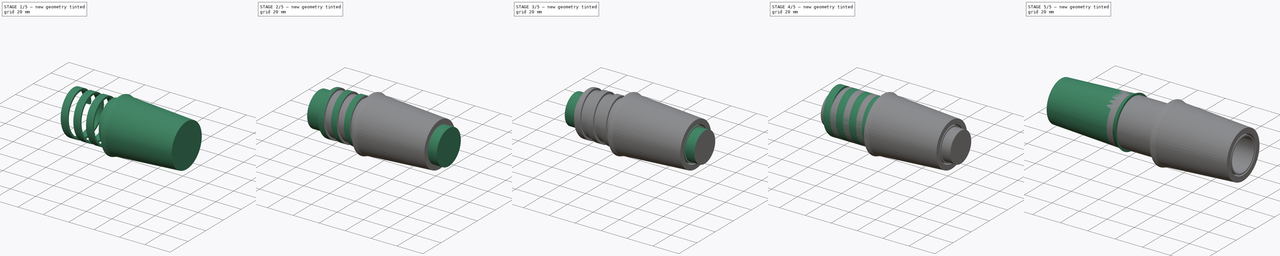
[diagram: build sequence overview — one tinted view per stage of 5, left to right]
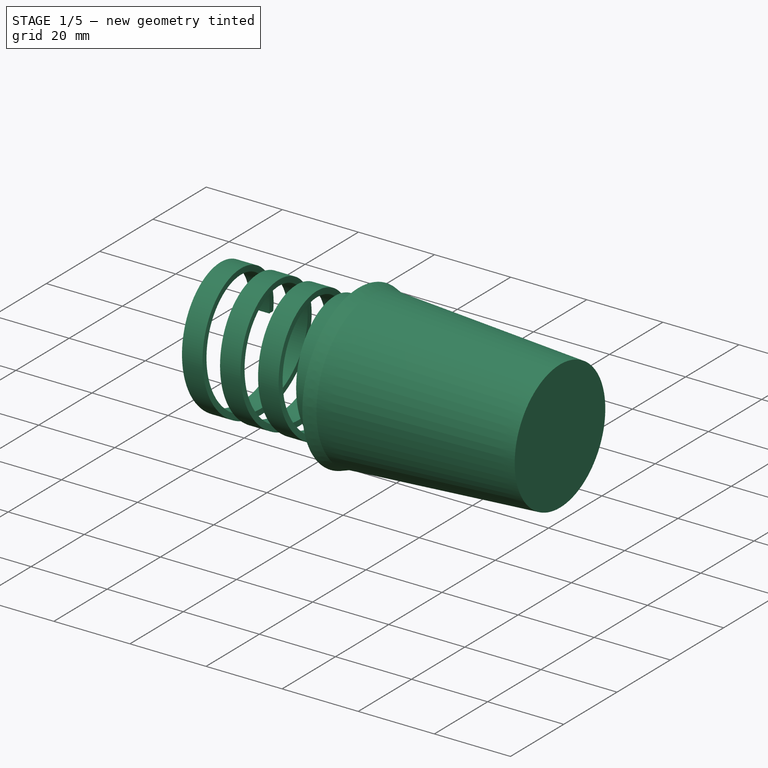
[diagram: stage 1 of 5 — iso view after this stage's code; geometry added in this stage tinted green]
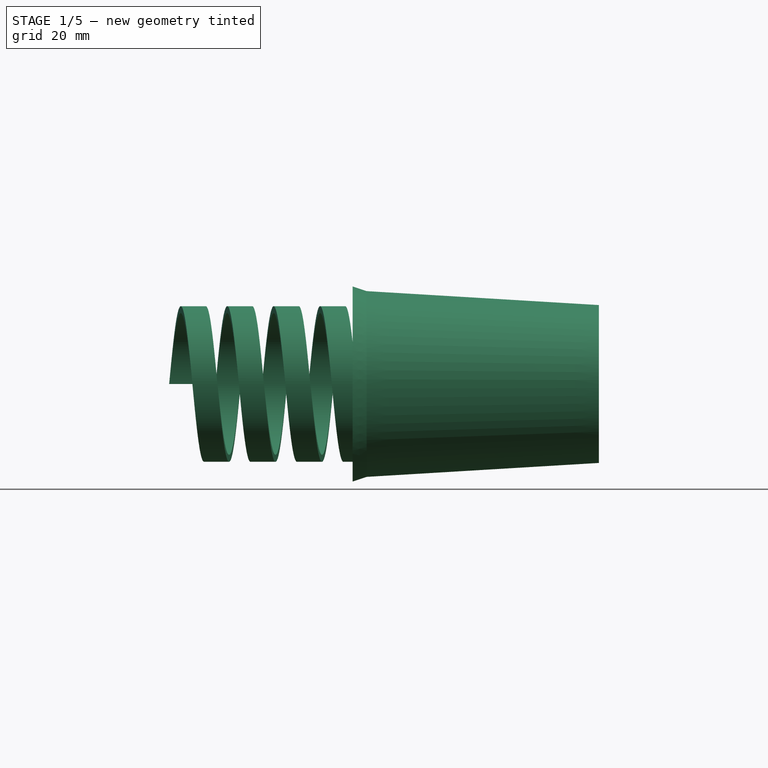
[diagram: stage 1 of 5 — front view after this stage's code; geometry added in this stage tinted green]
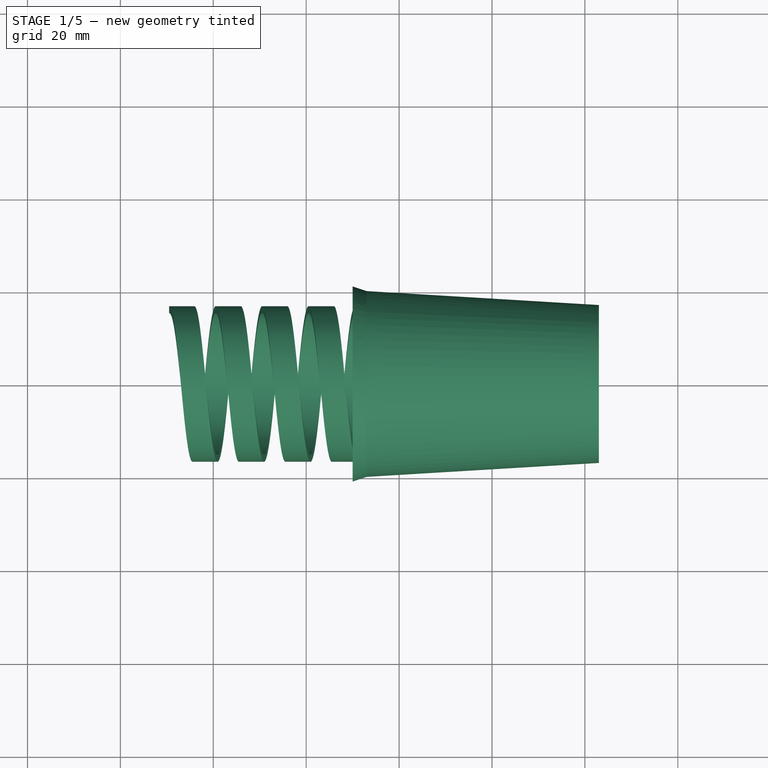
[diagram: stage 1 of 5 — top view after this stage's code; geometry added in this stage tinted green]
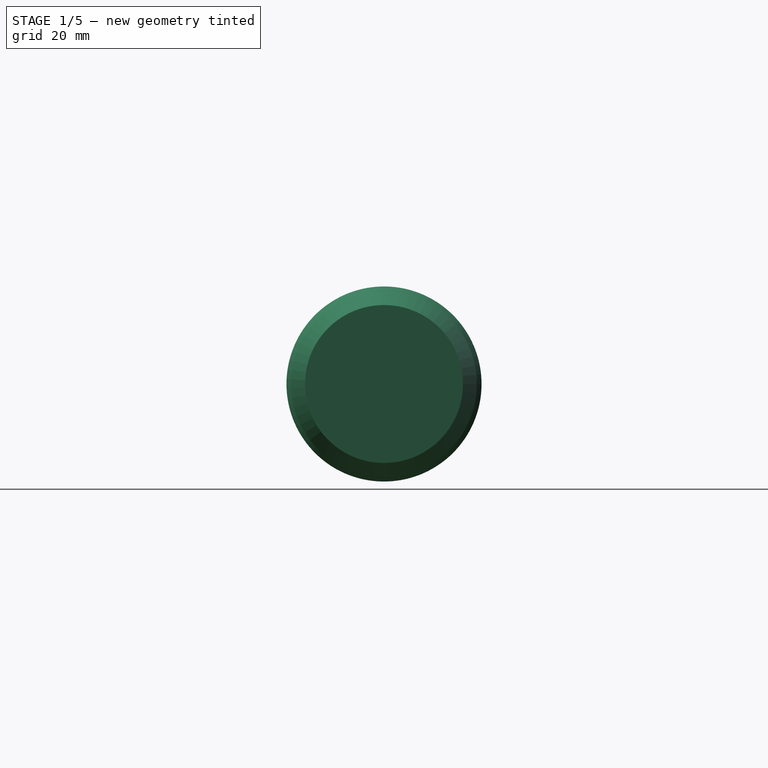
[diagram: stage 1 of 5 — right view after this stage's code; geometry added in this stage tinted green]
FCSTD DOCUMENT  (FreeCAD 0.21RUnknown)
Label: dust_tube_taper
License: All rights reserved
LicenseURL: http://en.wikipedia.org/wiki/All_rights_reserved
objects: Part::Cylinder×4, Part::Cut×4, Part::Cone×4, Part::MultiFuse×4, Sketcher::SketchObject×3, Part::Helix×2, Part::Sweep×2, PartDesign::Revolution×1
note: 25 computed .brp shape members not serialized (recipe doc carries the construction recipe); baked Part::Feature solids carry a one-line shape summary decoded from their .brp

FEATURE [Part::Cone] Cone002
  Angle = 360
  AttacherType = Attacher::AttachEngine3D
  Height = 3
  Placement = pos=(30,0,0) rot=(0.57735,0.57735,0.57735;2.0944rad)
  Radius1 = 21
  Radius2 = 20
FEATURE [Part::Cone] Cone003
  Angle = 360
  AttacherType = Attacher::AttachEngine3D
  Height = 50
  Placement = pos=(33,0,0) rot=(0.57735,0.57735,0.57735;2.0944rad)
  Radius1 = 20
  Radius2 = 17
FEATURE [Part::MultiFuse] Fusion002
  Shapes = -> [Cone003,Cone002]
FEATURE [Part::Helix] Helix001
  Angle = 0
  AttacherType = Attacher::AttachEngine3D
  Height = 45
  LocalCoord = 0
  Pitch = 10
  Placement = pos=(0,0,0) rot=(0.57735,0.57735,0.57735;2.0944rad)
  Radius = 16.75
  SegmentLength = 0
  Style = 1
FEATURE [Sketcher::SketchObject] Sketch002
  FullyConstrained = false
  MapMode = 5
  Placement = pos=(0,0,0) rot=(1,0,0;1.5708rad)
  sketch-geometry (4):
    g0: LineSegment StartX=33 StartY=-15.25 StartZ=0 EndX=38.4 EndY=-15.25 EndZ=0
    g1: LineSegment StartX=38.4 StartY=-15.25 StartZ=0 EndX=38.4 EndY=-16.75 EndZ=0
    g2: LineSegment StartX=38.4 StartY=-16.75 StartZ=0 EndX=33 EndY=-16.75 EndZ=0
    g3: LineSegment StartX=33 StartY=-16.75 StartZ=0 EndX=33 EndY=-15.25 EndZ=0
  constraints (12):
    c: Coincident(g0,g1)
    c: Coincident(g1,g2)
    c: Coincident(g2,g3)
    c: Coincident(g3,g0)
    c: Horizontal(g0)
    c: Horizontal(g2)
    c: Vertical(g1)
    c: Vertical(g3)
    c: DistanceX(g0) = 5.4
    c: DistanceY(g1) = -1.5
    c: DistanceY(g-1,g1) = -16.75
    c: DistanceX(g-1,g2) = 33
FEATURE [Part::Sweep] Sweep001
  Frenet = true
  Placement = pos=(-5,0,0) rot=(0,0,1;0rad)
  Sections = -> [Sketch002]
  Solid = true
  Spine = -> Helix001
  Transition = 1
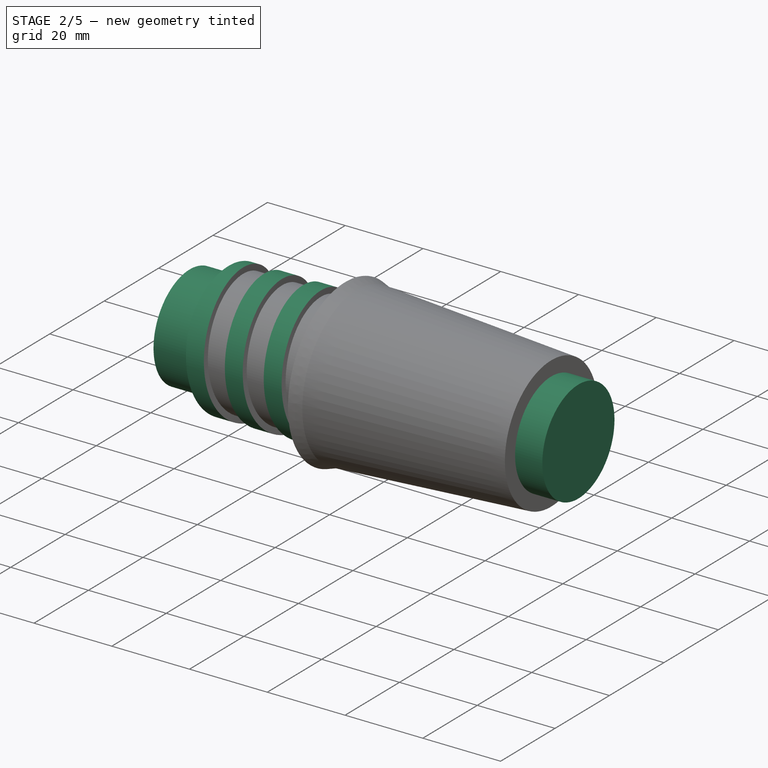
[diagram: stage 2 of 5 — iso view after this stage's code; geometry added in this stage tinted green]
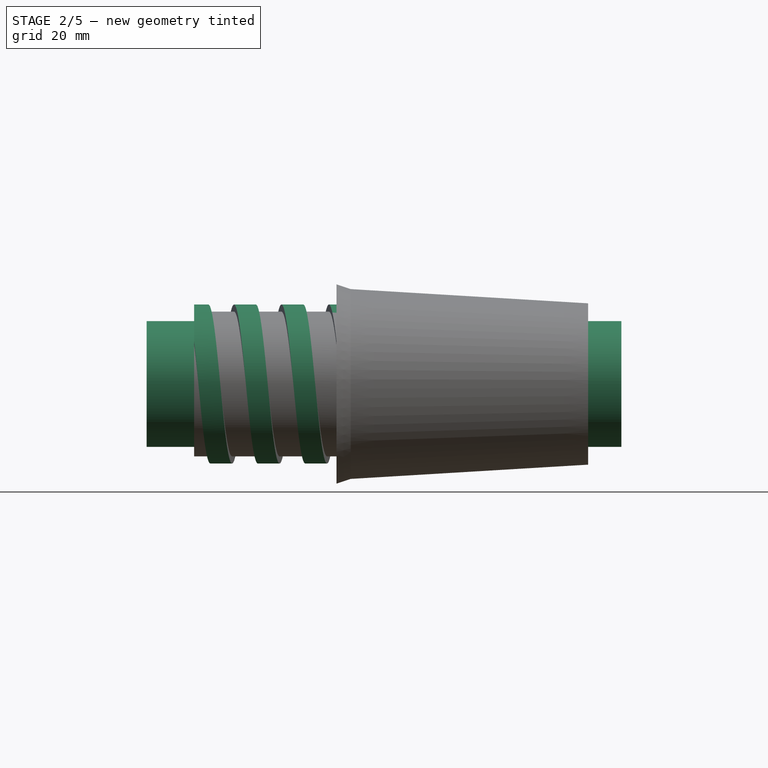
[diagram: stage 2 of 5 — front view after this stage's code; geometry added in this stage tinted green]
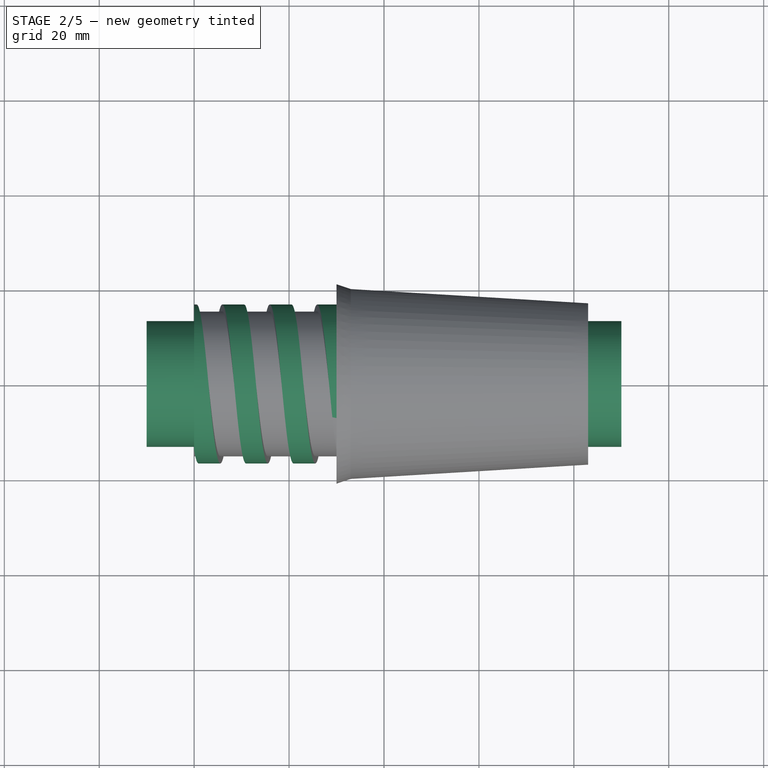
[diagram: stage 2 of 5 — top view after this stage's code; geometry added in this stage tinted green]
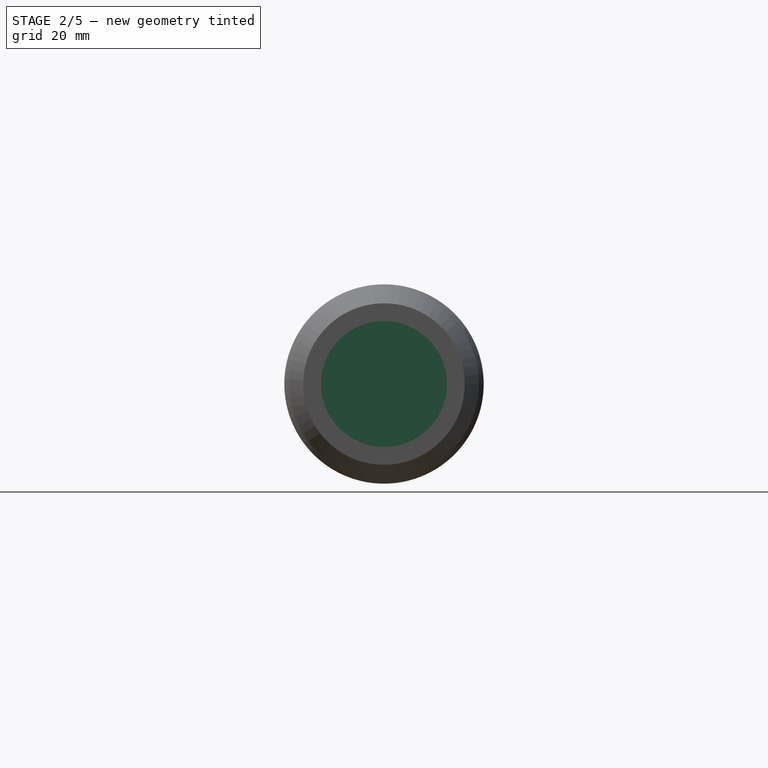
[diagram: stage 2 of 5 — right view after this stage's code; geometry added in this stage tinted green]
FEATURE [Part::Cylinder] Cylinder002
  Angle = 360
  AttacherType = Attacher::AttachEngine3D
  FirstAngle = 0
  Height = 30
  Placement = pos=(0,0,0) rot=(0.57735,0.57735,0.57735;2.0944rad)
  Radius = 16.74
  SecondAngle = 0
FEATURE [Part::Cylinder] Cylinder003
  Angle = 360
  AttacherType = Attacher::AttachEngine3D
  FirstAngle = 0
  Height = 100
  Placement = pos=(-10,0,0) rot=(0.57735,0.57735,0.57735;2.0944rad)
  Radius = 13.25
  SecondAngle = 0
FEATURE [Part::Cut] Cut002
  Base = -> Cylinder002
  Tool = -> Sweep001
FEATURE [Part::MultiFuse] Fusion003
  Shapes = -> [Cut002,Fusion002]
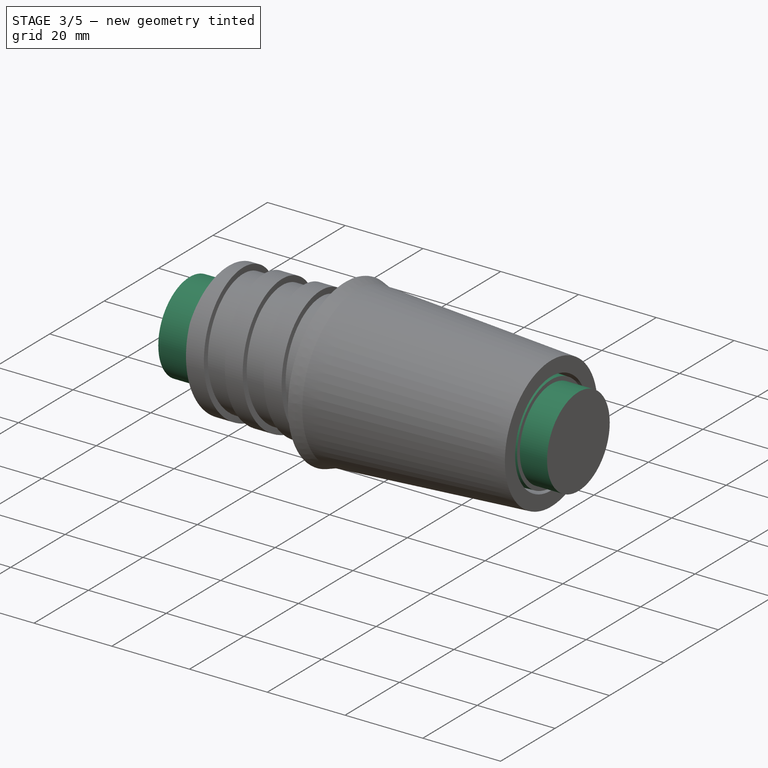
[diagram: stage 3 of 5 — iso view after this stage's code; geometry added in this stage tinted green]
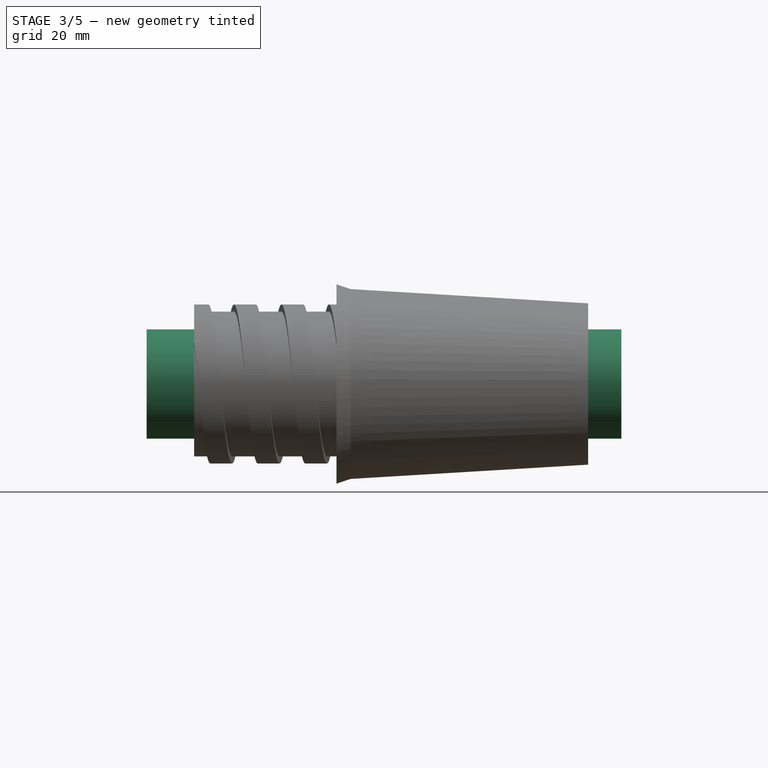
[diagram: stage 3 of 5 — front view after this stage's code; geometry added in this stage tinted green]
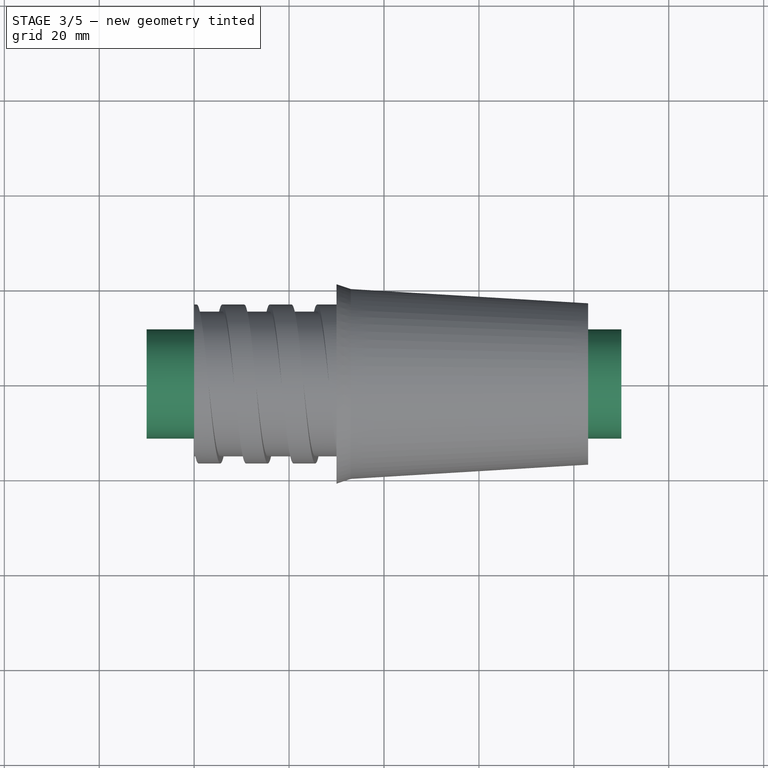
[diagram: stage 3 of 5 — top view after this stage's code; geometry added in this stage tinted green]
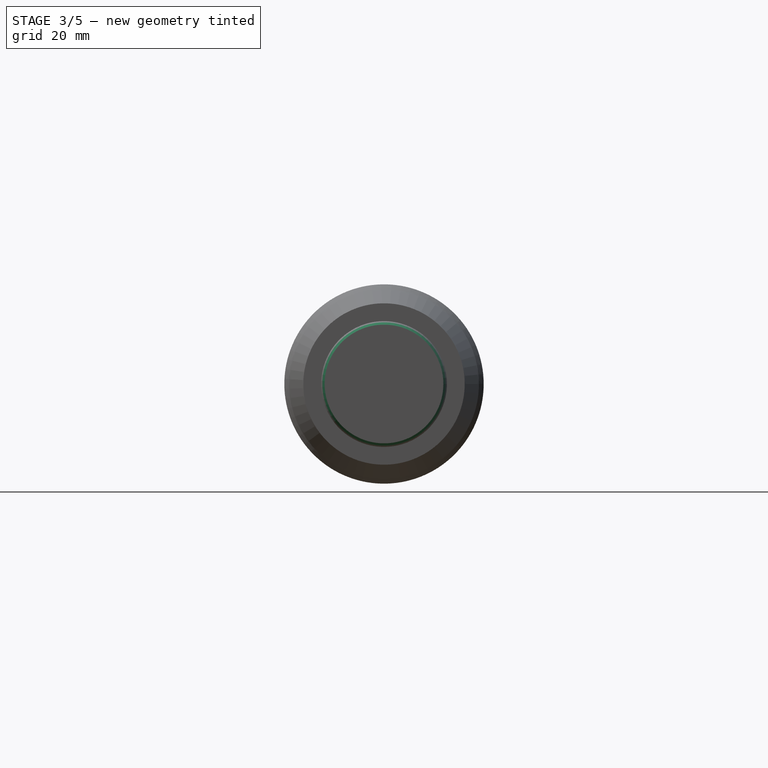
[diagram: stage 3 of 5 — right view after this stage's code; geometry added in this stage tinted green]
FEATURE [Part::Cone] Cone001
  Angle = 360
  AttacherType = Attacher::AttachEngine3D
  Height = 50
  Placement = pos=(33,0,0) rot=(0.57735,0.57735,0.57735;2.0944rad)
  Radius1 = 14
  Radius2 = 12.5
FEATURE [Part::Cylinder] Cylinder001
  Angle = 360
  AttacherType = Attacher::AttachEngine3D
  FirstAngle = 0
  Height = 100
  Placement = pos=(-10,0,0) rot=(0.57735,0.57735,0.57735;2.0944rad)
  Radius = 11.5
  SecondAngle = 0
FEATURE [Part::Cut] Cut003  label="tapered_32-37mm"
  Base = -> Fusion003
  Tool = -> Cylinder003
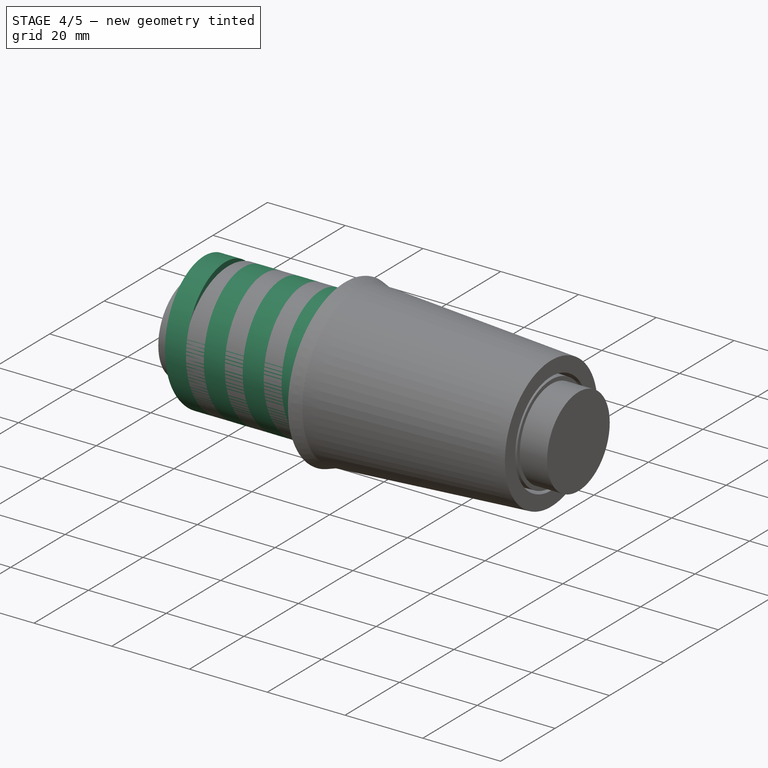
[diagram: stage 4 of 5 — iso view after this stage's code; geometry added in this stage tinted green]
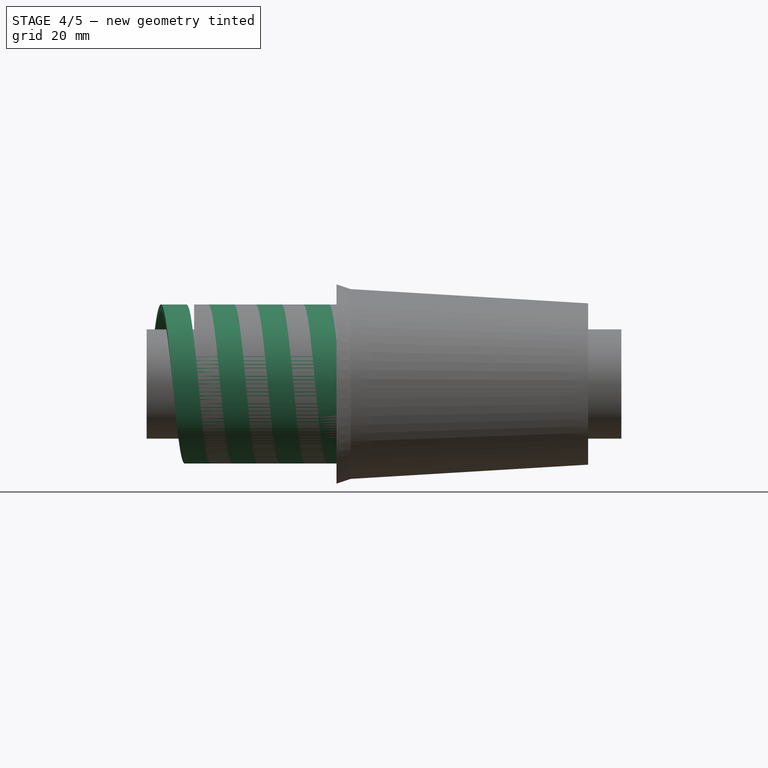
[diagram: stage 4 of 5 — front view after this stage's code; geometry added in this stage tinted green]
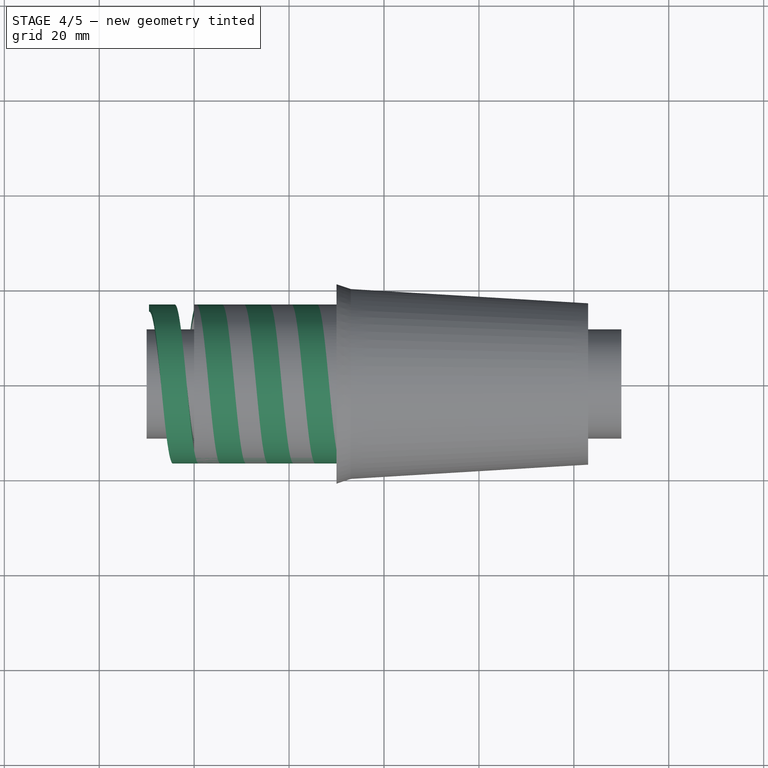
[diagram: stage 4 of 5 — top view after this stage's code; geometry added in this stage tinted green]
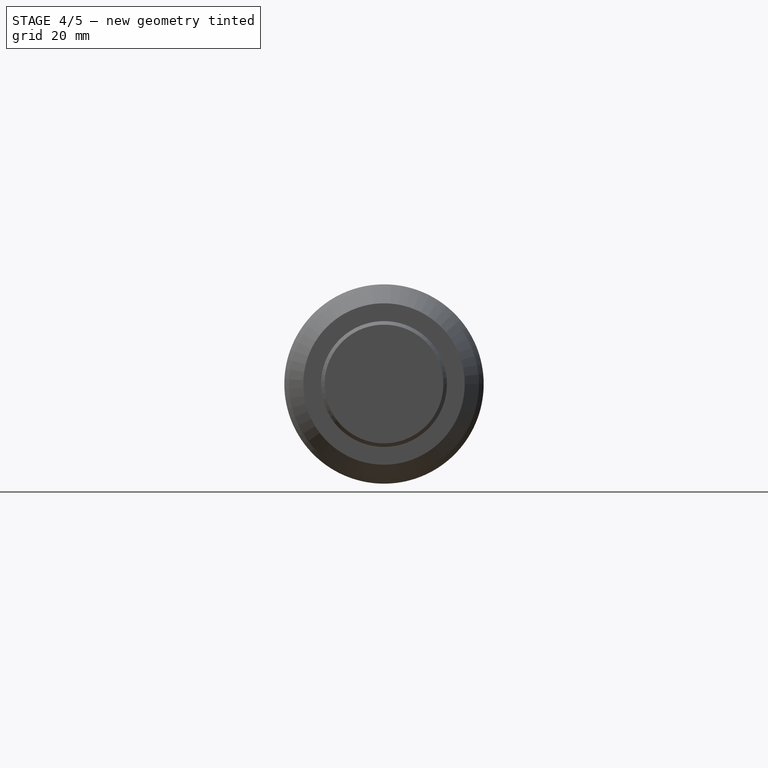
[diagram: stage 4 of 5 — right view after this stage's code; geometry added in this stage tinted green]
FEATURE [Part::Helix] Helix
  Angle = 0
  AttacherType = Attacher::AttachEngine3D
  Height = 45
  LocalCoord = 0
  Pitch = 10
  Placement = pos=(0,0,0) rot=(0.57735,0.57735,0.57735;2.0944rad)
  Radius = 16.75
  SegmentLength = 0
  Style = 1
FEATURE [Sketcher::SketchObject] Sketch001
  FullyConstrained = false
  MapMode = 5
  Placement = pos=(0,0,0) rot=(1,0,0;1.5708rad)
  sketch-geometry (4):
    g0: LineSegment StartX=33 StartY=-15.25 StartZ=0 EndX=38.4 EndY=-15.25 EndZ=0
    g1: LineSegment StartX=38.4 StartY=-15.25 StartZ=0 EndX=38.4 EndY=-16.75 EndZ=0
    g2: LineSegment StartX=38.4 StartY=-16.75 StartZ=0 EndX=33 EndY=-16.75 EndZ=0
    g3: LineSegment StartX=33 StartY=-16.75 StartZ=0 EndX=33 EndY=-15.25 EndZ=0
  constraints (12):
    c: Coincident(g0,g1)
    c: Coincident(g1,g2)
    c: Coincident(g2,g3)
    c: Coincident(g3,g0)
    c: Horizontal(g0)
    c: Horizontal(g2)
    c: Vertical(g1)
    c: Vertical(g3)
    c: DistanceX(g0) = 5.4
    c: DistanceY(g1) = -1.5
    c: DistanceY(g-1,g1) = -16.75
    c: DistanceX(g-1,g2) = 33
FEATURE [Part::Sweep] Sweep
  Frenet = true
  Placement = pos=(-5,0,0) rot=(0,0,1;0rad)
  Sections = -> [Sketch001]
  Solid = true
  Spine = -> Helix
  Transition = 1
FEATURE [Part::Cylinder] Cylinder
  Angle = 360
  AttacherType = Attacher::AttachEngine3D
  FirstAngle = 0
  Height = 30
  Placement = pos=(0,0,0) rot=(0.57735,0.57735,0.57735;2.0944rad)
  Radius = 16.74
  SecondAngle = 0
FEATURE [Part::Cone] Cone
  Angle = 360
  AttacherType = Attacher::AttachEngine3D
  Height = 3
  Placement = pos=(30,0,0) rot=(0.57735,0.57735,0.57735;2.0944rad)
  Radius1 = 18.5
  Radius2 = 14
FEATURE [Part::MultiFuse] Fusion
  Shapes = -> [Cone001,Cone]
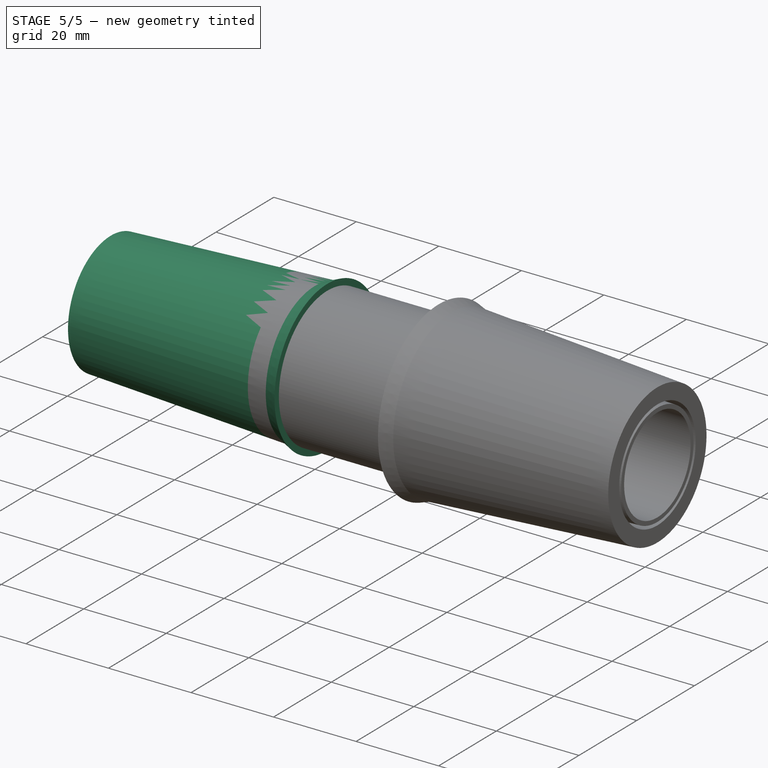
[diagram: stage 5 of 5 — iso view after this stage's code; geometry added in this stage tinted green]
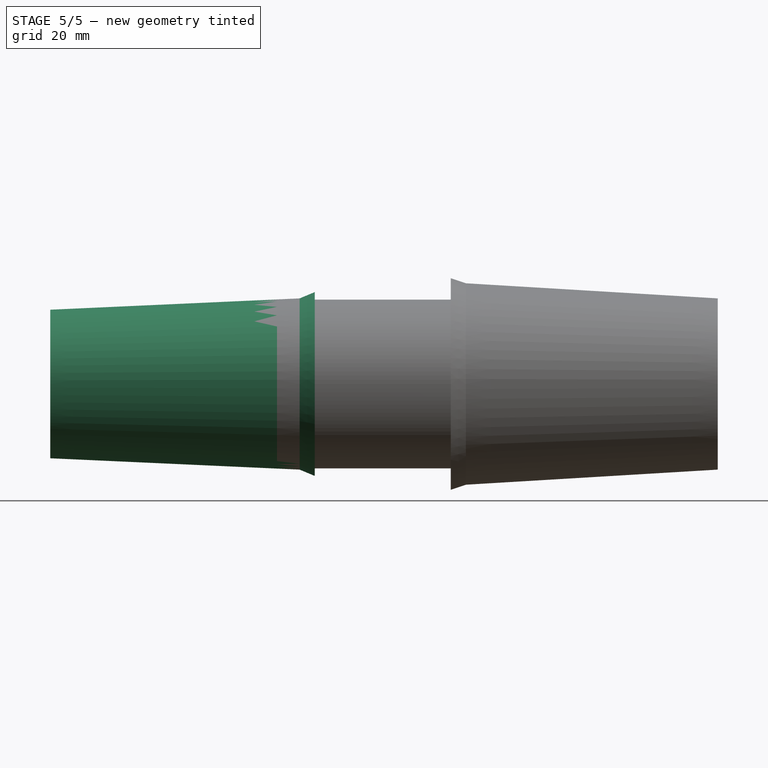
[diagram: stage 5 of 5 — front view after this stage's code; geometry added in this stage tinted green]
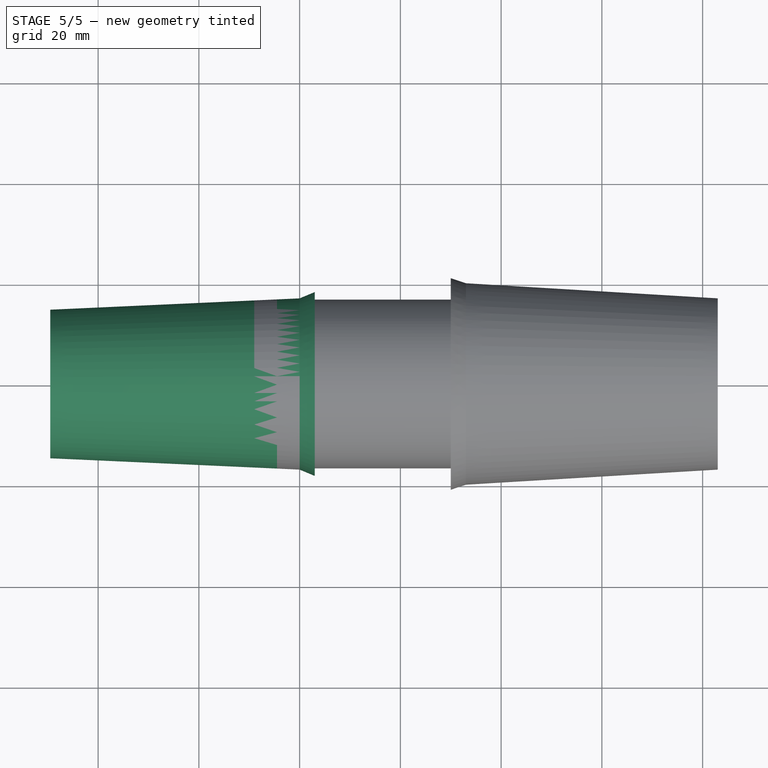
[diagram: stage 5 of 5 — top view after this stage's code; geometry added in this stage tinted green]
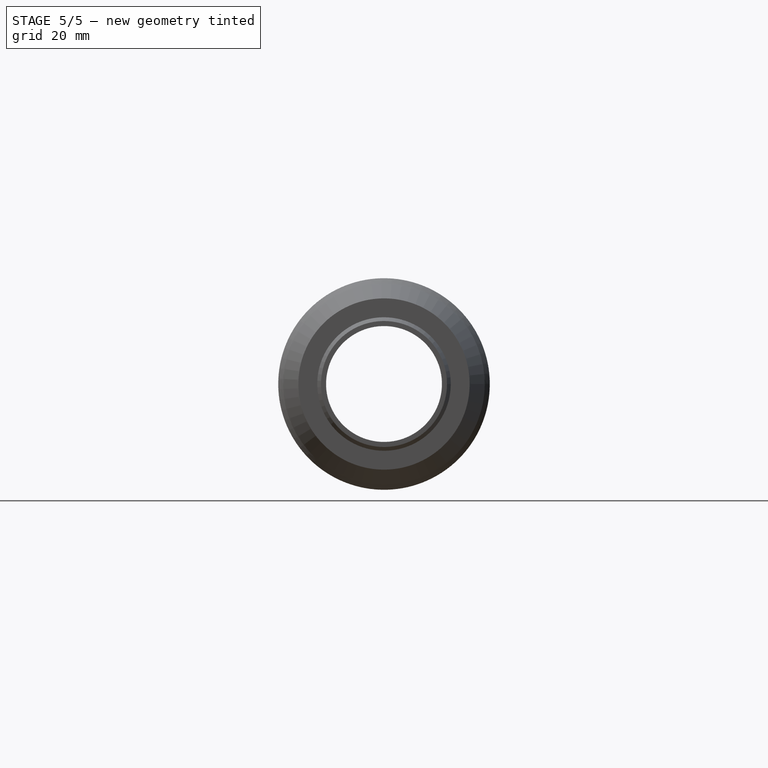
[diagram: stage 5 of 5 — right view after this stage's code; geometry added in this stage tinted green]
FEATURE [Sketcher::SketchObject] Sketch  label="Profile"
  FullyConstrained = false
  MapMode = 5
  sketch-geometry (7):
    g0: LineSegment StartX=-49.5 StartY=13.25 StartZ=0 EndX=33 EndY=13.25 EndZ=0
    g1: LineSegment StartX=33 StartY=13.25 StartZ=0 EndX=33 EndY=16.75 EndZ=0
    g2: LineSegment StartX=33 StartY=16.75 StartZ=0 EndX=3 EndY=16.75 EndZ=0
    g3: LineSegment StartX=0 StartY=17 StartZ=0 EndX=-49.5 EndY=14.75 EndZ=0
    g4: LineSegment StartX=-49.5 StartY=14.75 StartZ=0 EndX=-49.5 EndY=13.25 EndZ=0
    g5: LineSegment StartX=0 StartY=17 StartZ=0 EndX=3 EndY=18.25 EndZ=0
    g6: LineSegment StartX=3 StartY=18.25 StartZ=0 EndX=3 EndY=16.75 EndZ=0
  constraints (21):
    c: Horizontal(g0)
    c: Coincident(g0,g1)
    c: Vertical(g1)
    c: Coincident(g1,g2)
    c: Horizontal(g2)
    c: Coincident(g3,g4)
    c: Coincident(g4,g0)
    c: Vertical(g4)
    c: DistanceY(g-1,g0) = 13.25
    c: DistanceX(g0) = 82.5
    c: DistanceX(g2) = -30
    c: DistanceY(g1) = 3.5
    c: DistanceY(g-1,g3) = 17
    c: DistanceY(g4) = -1.5
    c: DistanceX(g-1,g0) = 33
    c: Coincident(g5,g3)
    c: DistanceX(g3,g1) = 33
    c: Coincident(g6,g5)
    c: Vertical(g6)
    c: Coincident(g6,g2)
    c: DistanceY(g5,g2) = -1.5
FEATURE [PartDesign::Revolution] Revolution
  AllowMultiFace = false
  Angle = 360
  Axis = (1,0,0)
  Base = (0,0,0)
  Profile = -> Sketch
  ReferenceAxis = -> Sketch [H_Axis]
FEATURE [Part::Cut] Cut
  Base = -> Cylinder
  Tool = -> Sweep
FEATURE [Part::MultiFuse] Fusion001
  Shapes = -> [Cut,Fusion]
FEATURE [Part::Cut] Cut001  label="tapered_29.5-34mm"
  Base = -> Fusion001
  Tool = -> Cylinder001
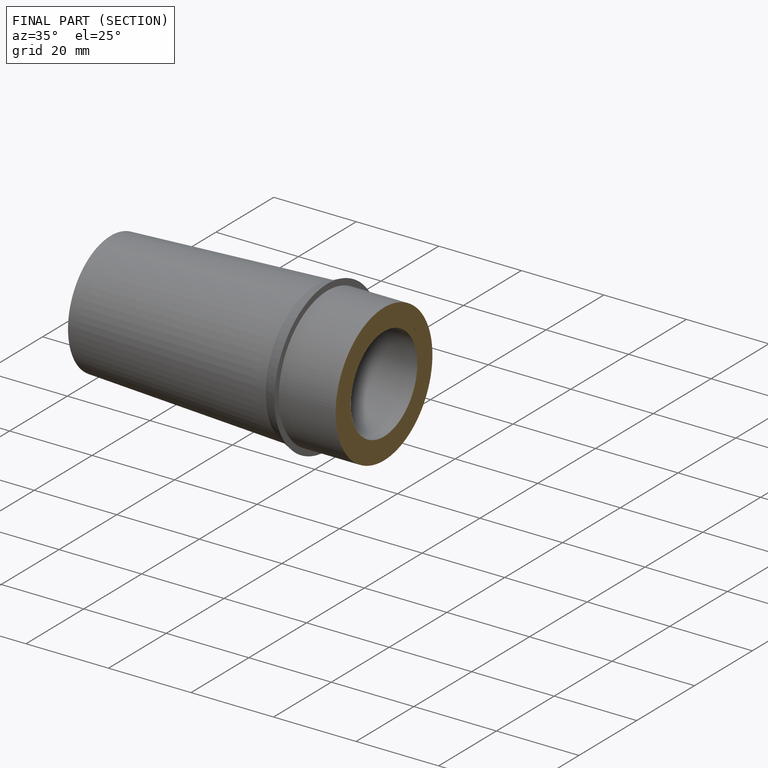
[diagram: finished part — half-section view (interior)]
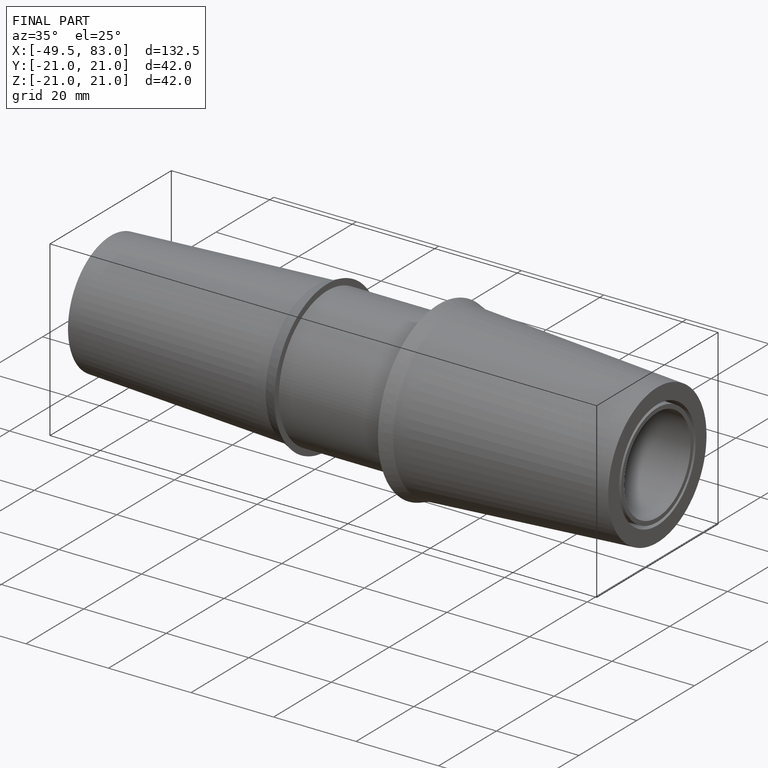
[diagram: finished part — iso view with bounding-box wireframe]
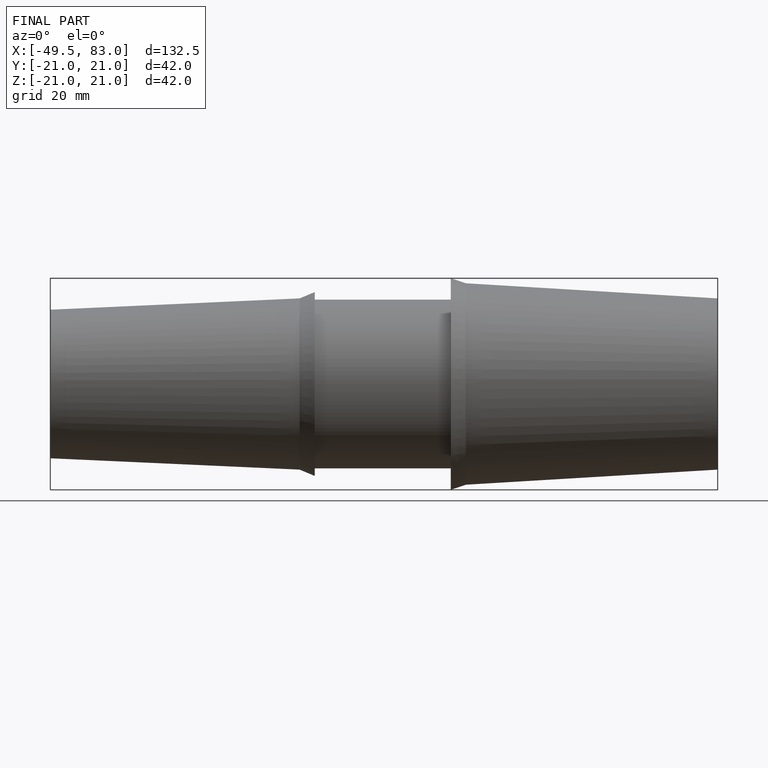
[diagram: finished part — front view with bounding-box wireframe]
